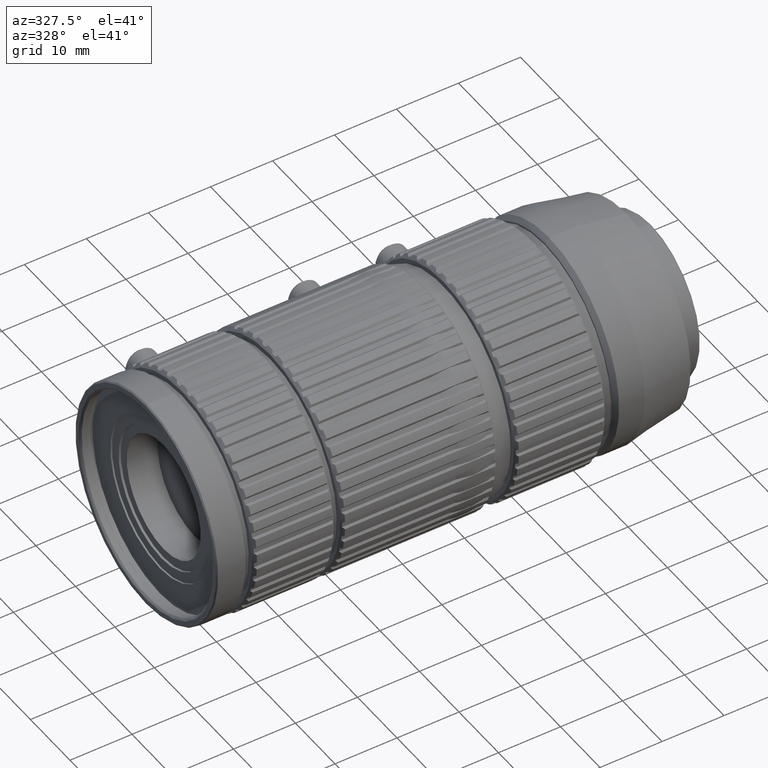
[diagram: clean part render]
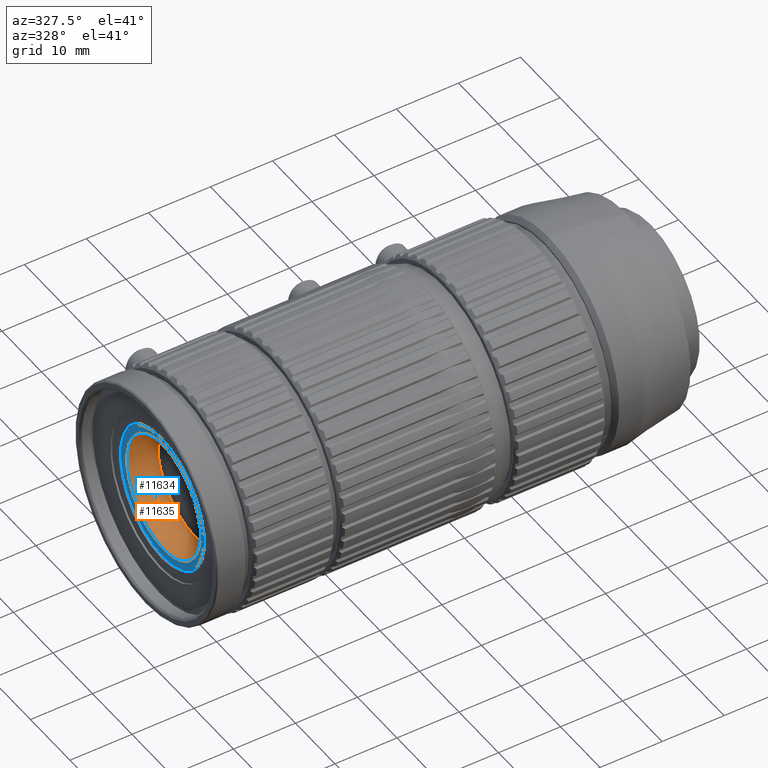
[diagram: same view with the hole feature highlighted: cylindrical wall and planar end face, labeled with their STEP entity ids]
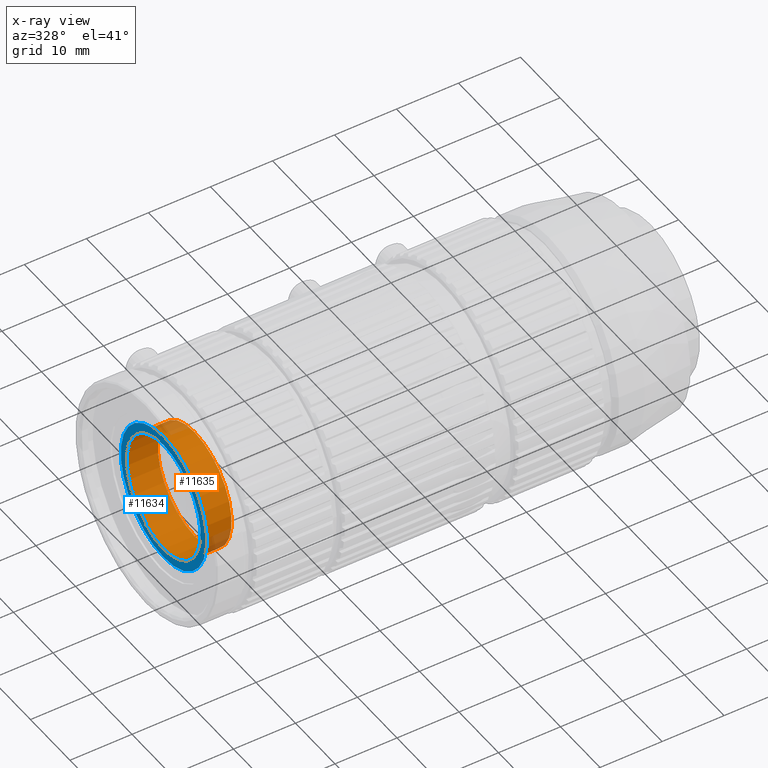
[diagram: x-ray of the same camera — body ghosted, the hole faces saturated]
A machine part, auxiliary view. The highlighted faces form one hole feature of diameter 18.7 mm: the cylindrical wall (entity #11635, orange) and its adjacent planar end face (entity #11634, blue) — they share a circular edge in the B-rep.
The next image is the same camera in x-ray (body ghosted, the hole faces saturated) — the bore reads through the body.
Wall:
#256=CYLINDRICAL_SURFACE('',#12591,9.35000000000005);
#2404=ORIENTED_EDGE('',*,*,#4781,.F.);
#2405=ORIENTED_EDGE('',*,*,#4779,.T.);
#4779=EDGE_CURVE('',#5867,#5867,#6414,.T.);
#4781=EDGE_CURVE('',#5869,#5869,#6416,.T.);
#5867=VERTEX_POINT('',#18384);
#5869=VERTEX_POINT('',#18389);
#6414=CIRCLE('',#12589,9.35000000000004);
#6416=CIRCLE('',#12592,9.35000000000005);
#6988=EDGE_LOOP('',(#2404));
#6989=EDGE_LOOP('',(#2405));
#7526=FACE_BOUND('',#6988,.T.);
#7527=FACE_BOUND('',#6989,.T.);
#11635=ADVANCED_FACE('',(#7526,#7527),#256,.F.);
#12589=AXIS2_PLACEMENT_3D('',#18383,#14992,#14993);
#12591=AXIS2_PLACEMENT_3D('',#18387,#14996,#14997);
#12592=AXIS2_PLACEMENT_3D('',#18388,#14998,#14999);
#14992=DIRECTION('',(-1.,0.,8.25818670097774E-17));
#14993=DIRECTION('',(8.25818670097774E-17,0.,1.));
#14996=DIRECTION('',(-1.,0.,8.25818670097774E-17));
#14997=DIRECTION('',(8.25818670097774E-17,0.,1.));
#14998=DIRECTION('',(-1.,0.,8.25818670097774E-17));
#14999=DIRECTION('',(8.25818670097774E-17,0.,1.));
#18383=CARTESIAN_POINT('',(-92.1545706470556,0.,-1.98075228725152E-14));
#18384=CARTESIAN_POINT('',(-92.1545706470556,0.,9.35000000000002));
#18387=CARTESIAN_POINT('',(4.08995652224015,0.,-2.77555756156289E-14));
#18388=CARTESIAN_POINT('',(-87.1583214223252,0.,-2.02201224615396E-14));
#18389=CARTESIAN_POINT('',(-87.1583214223252,0.,9.35000000000003));
End face:
#2402=ORIENTED_EDGE('',*,*,#4779,.F.);
#2403=ORIENTED_EDGE('',*,*,#4780,.T.);
#4779=EDGE_CURVE('',#5867,#5867,#6414,.T.);
#4780=EDGE_CURVE('',#5868,#5868,#6415,.T.);
#5867=VERTEX_POINT('',#18384);
#5868=VERTEX_POINT('',#18386);
#6414=CIRCLE('',#12589,9.35000000000004);
#6415=CIRCLE('',#12590,10.85);
#6986=EDGE_LOOP('',(#2402));
#6987=EDGE_LOOP('',(#2403));
#7524=FACE_BOUND('',#6986,.T.);
#7525=FACE_BOUND('',#6987,.T.);
#7995=PLANE('',#12588);
#11634=ADVANCED_FACE('',(#7524,#7525),#7995,.T.);
#12588=AXIS2_PLACEMENT_3D('',#18382,#14990,#14991);
#12589=AXIS2_PLACEMENT_3D('',#18383,#14992,#14993);
#12590=AXIS2_PLACEMENT_3D('',#18385,#14994,#14995);
#14990=DIRECTION('',(-1.,0.,8.25818670097774E-17));
#14991=DIRECTION('',(8.25818670097774E-17,0.,1.));
#14992=DIRECTION('',(-1.,0.,8.25818670097774E-17));
#14993=DIRECTION('',(8.25818670097774E-17,0.,1.));
#14994=DIRECTION('',(-1.,0.,8.25818670097774E-17));
#14995=DIRECTION('',(8.25818670097774E-17,0.,1.));
#18382=CARTESIAN_POINT('',(-92.1545706470556,0.,9.35000000000002));
#18383=CARTESIAN_POINT('',(-92.1545706470556,0.,-1.98075228725152E-14));
#18384=CARTESIAN_POINT('',(-92.1545706470556,0.,9.35000000000002));
#18385=CARTESIAN_POINT('',(-92.1545706470556,0.,-1.98075228725152E-14));
#18386=CARTESIAN_POINT('',(-92.1545706470556,0.,10.85));